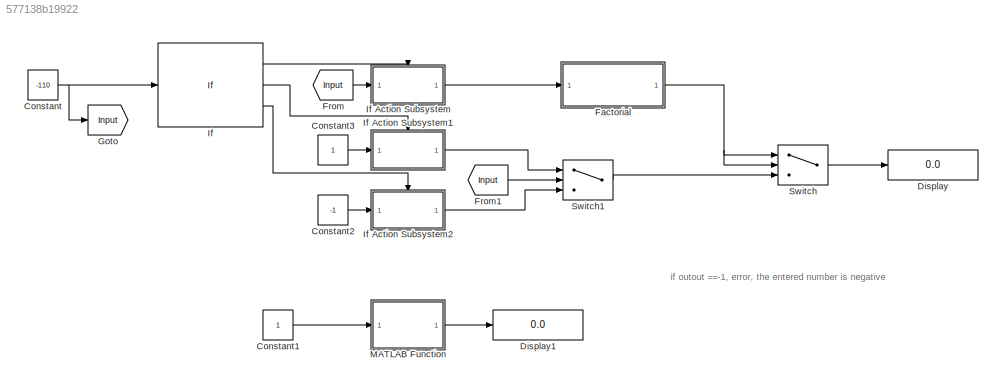
MODEL slx_577138b19922
KIND model
CONFIG AbsTol = auto
CONFIG EnableMultiTasking = off
CONFIG FixedStep = auto
CONFIG MaxStep = auto
CONFIG MinStep = auto
CONFIG RelTol = 1e-3
CONFIG SampleTimeConstraint = Unconstrained
CONFIG Solver = VariableStepAuto
CONFIG SolverName = VariableStepAuto
CONFIG StartTime = 0.0
CONFIG StopTime = 10.0
BLOCK [Constant] Constant
  OutDataTypeStr = int32
  Value = -110
BLOCK [Constant] Constant1
BLOCK [Constant] Constant2
  Value = -1
BLOCK [Constant] Constant3
BLOCK [Display] Display
  Decimation = 1
  Format = long
  Ports = [1]
BLOCK [Display] Display1
  Decimation = 1
  Format = long
  Ports = [1]
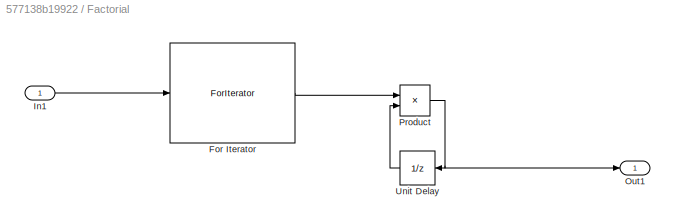
BLOCK [SubSystem] Factorial 
  Ports = [1, 1]
  RequestExecContextInheritance = off
  TreatAsAtomicUnit = on
BLOCK [ForIterator] Factorial /For Iterator
  IterationSource = external
  Ports = [1, 1]
  ResetStates = reset
BLOCK [Inport] Factorial /In1
  IconDisplay = Port number
  OutDataTypeStr = int32
BLOCK [Outport] Factorial /Out1
  IconDisplay = Port number
BLOCK [Product] Factorial /Product
  InputSameDT = off
  OutDataTypeStr = int32
  Ports = [2, 1]
  RndMeth = Floor
  SaturateOnIntegerOverflow = off
BLOCK [UnitDelay] Factorial /Unit Delay
  InitialCondition = 1
  InputProcessing = Elements as channels (sample based)
  SampleTime = -1
BLOCK [From] From
  GotoTag = Input
BLOCK [From] From1
  GotoTag = Input
BLOCK [Goto] Goto
  GotoTag = Input
BLOCK [If] If
  ElseIfExpressions = u1 == 0
  Ports = [1, 3]
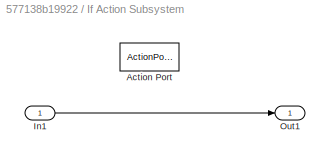
BLOCK [SubSystem] If Action Subsystem
  Ports = [1, 1, 0, 0, 0, 0, 0, 1]
  RequestExecContextInheritance = off
  TreatAsAtomicUnit = on
BLOCK [ActionPort] If Action Subsystem/Action Port
  ActionType = then
BLOCK [Inport] If Action Subsystem/In1
  IconDisplay = Port number
  OutDataTypeStr = int32
BLOCK [Outport] If Action Subsystem/Out1
  IconDisplay = Port number
  OutDataTypeStr = int32
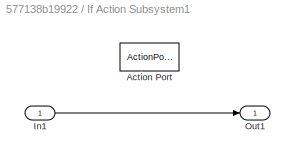
BLOCK [SubSystem] If Action Subsystem1
  Ports = [1, 1, 0, 0, 0, 0, 0, 1]
  RequestExecContextInheritance = off
  TreatAsAtomicUnit = on
BLOCK [ActionPort] If Action Subsystem1/Action Port
  ActionType = elseif
BLOCK [Inport] If Action Subsystem1/In1
  IconDisplay = Port number
BLOCK [Outport] If Action Subsystem1/Out1
  IconDisplay = Port number
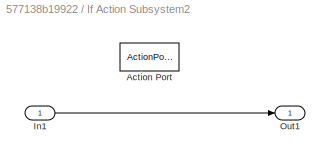
BLOCK [SubSystem] If Action Subsystem2
  Ports = [1, 1, 0, 0, 0, 0, 0, 1]
  RequestExecContextInheritance = off
  TreatAsAtomicUnit = on
BLOCK [ActionPort] If Action Subsystem2/Action Port
  ActionType = else
BLOCK [Inport] If Action Subsystem2/In1
  IconDisplay = Port number
BLOCK [Outport] If Action Subsystem2/Out1
  IconDisplay = Port number
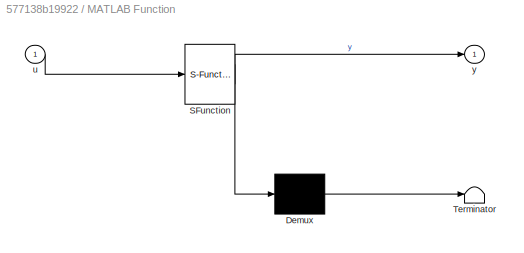
BLOCK [SubSystem] MATLAB Function
  ErrorFcn = Stateflow.Translate.translate
  PermitHierarchicalResolution = ExplicitOnly
  Ports = [1, 1]
  RequestExecContextInheritance = off
  SFBlockType = MATLAB Function
  TreatAsAtomicUnit = on
BLOCK [Demux] MATLAB Function/ Demux 
  Outputs = 1
  Ports = [1, 1]
BLOCK [S-Function] MATLAB Function/ SFunction 
  EnableBusSupport = on
  FunctionName = sf_sfun
  PortCounts = [1 2]
  Ports = [1, 2]
  SFcnIsStateOwnerBlock = off
  SFunctionDeploymentMode = off
  Tag = Stateflow S-Function Factorial_Matlab_fn__For_Loop 2
BLOCK [Terminator] MATLAB Function/ Terminator 
BLOCK [Inport] MATLAB Function/u
  IconDisplay = Port number
BLOCK [Outport] MATLAB Function/y
  IconDisplay = Port number
BLOCK [Switch] Switch
  InputSameDT = off
  SaturateOnIntegerOverflow = off
  Threshold = 1
BLOCK [Switch] Switch1
  InputSameDT = off
  SaturateOnIntegerOverflow = off
ANNOTATION (root): if outout ==-1, error, the entered number is negative
LINE Constant1:1 -> MATLAB Function:1
LINE Constant2:1 -> If Action Subsystem2:1
LINE Constant3:1 -> If Action Subsystem1:1
NET Constant:1 -> Goto:1, If:1
LINE Factorial /For Iterator:1 -> Factorial /Product:1
LINE Factorial /In1:1 -> Factorial /For Iterator:1
NET Factorial /Product:1 -> Factorial /Out1:1, Factorial /Unit Delay:1
LINE Factorial /Unit Delay:1 -> Factorial /Product:2
NET Factorial :1 -> Switch:1, Switch:2
LINE From1:1 -> Switch1:2
LINE From:1 -> If Action Subsystem:1
LINE If Action Subsystem/In1:1 -> If Action Subsystem/Out1:1
LINE If Action Subsystem1/In1:1 -> If Action Subsystem1/Out1:1
LINE If Action Subsystem1:1 -> Switch1:1
LINE If Action Subsystem2/In1:1 -> If Action Subsystem2/Out1:1
LINE If Action Subsystem2:1 -> Switch1:3
LINE If Action Subsystem:1 -> Factorial :1
LINE If:1 -> If Action Subsystem:ifaction
LINE If:2 -> If Action Subsystem1:ifaction
LINE If:3 -> If Action Subsystem2:ifaction
LINE MATLAB Function:1 -> Display1:1
LINE Switch1:1 -> Switch:3
LINE Switch:1 -> Display:1
note: NET lines group one-source signal fan-out (src -> all destinations, sorted); 1:1 wires keep LINE
CHART MATLAB Function states=1 transitions=1
  STATE_LABEL 'eML_blk_kernel()'
  STATE_LABEL 'SCRIPT:\nfunction y = fcn(u)\ny=1;\nif u<0\n    y=-1\n\n\nelse\n    for i=u:-1:1\n        y=y*i\n    end\nend'
